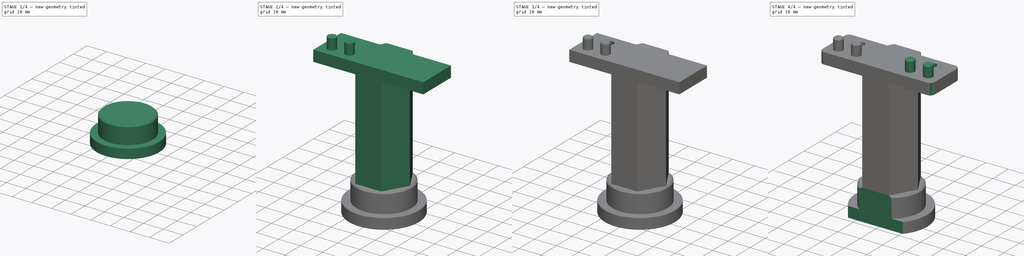
[diagram: build sequence overview — one tinted view per stage of 4, left to right]
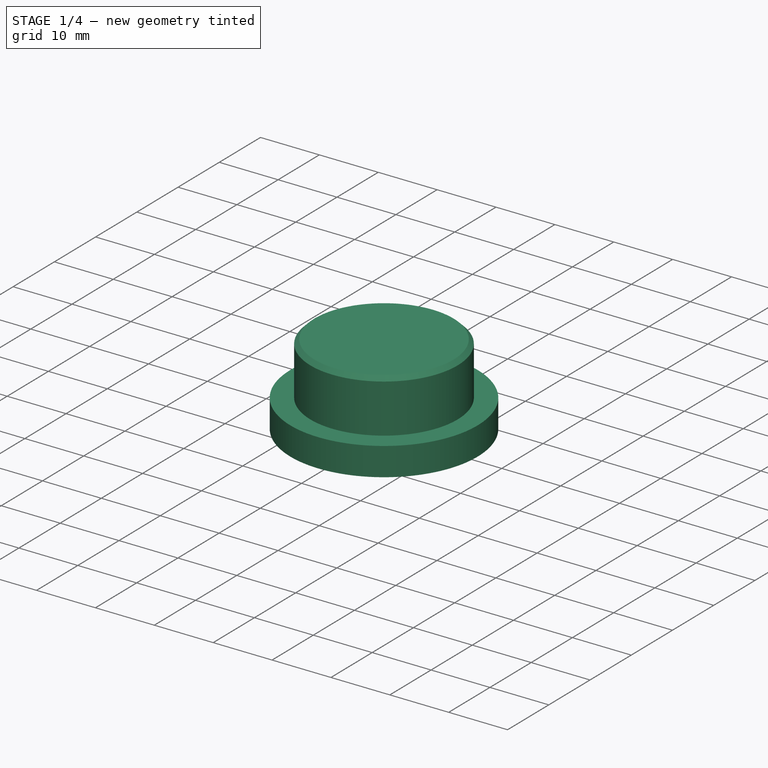
[diagram: stage 1 of 4 — iso view after this stage's code; geometry added in this stage tinted green]
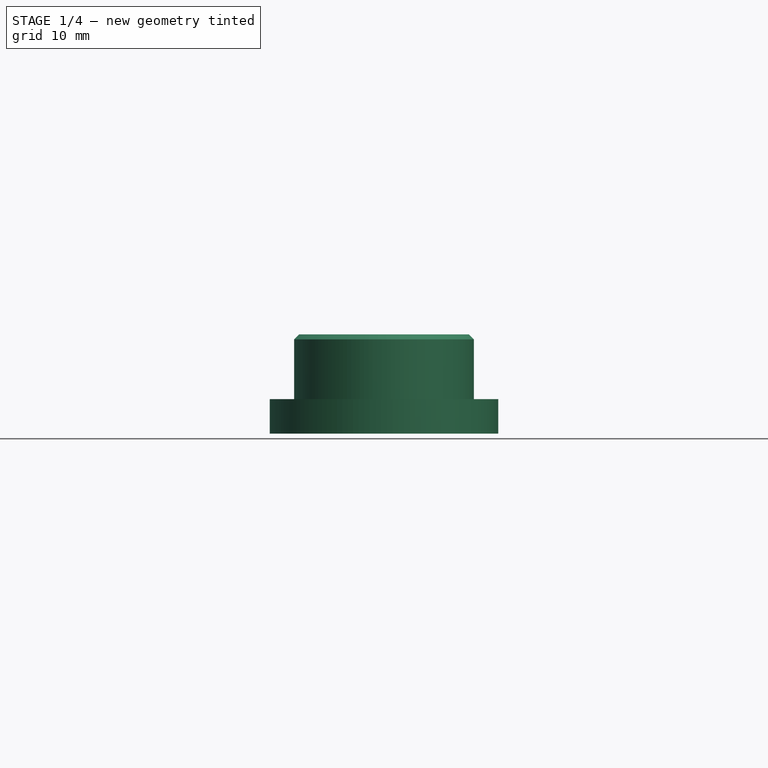
[diagram: stage 1 of 4 — front view after this stage's code; geometry added in this stage tinted green]
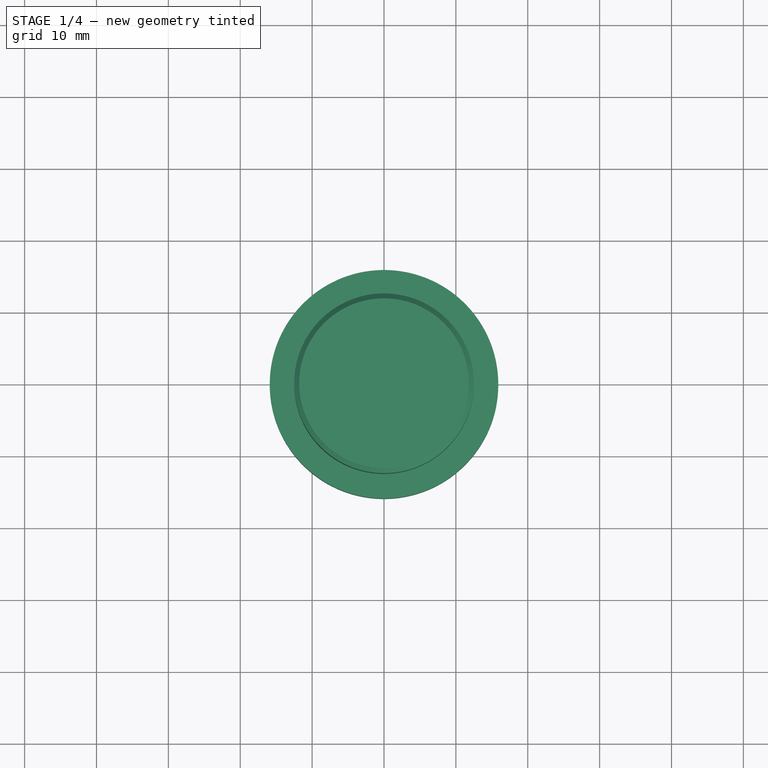
[diagram: stage 1 of 4 — top view after this stage's code; geometry added in this stage tinted green]
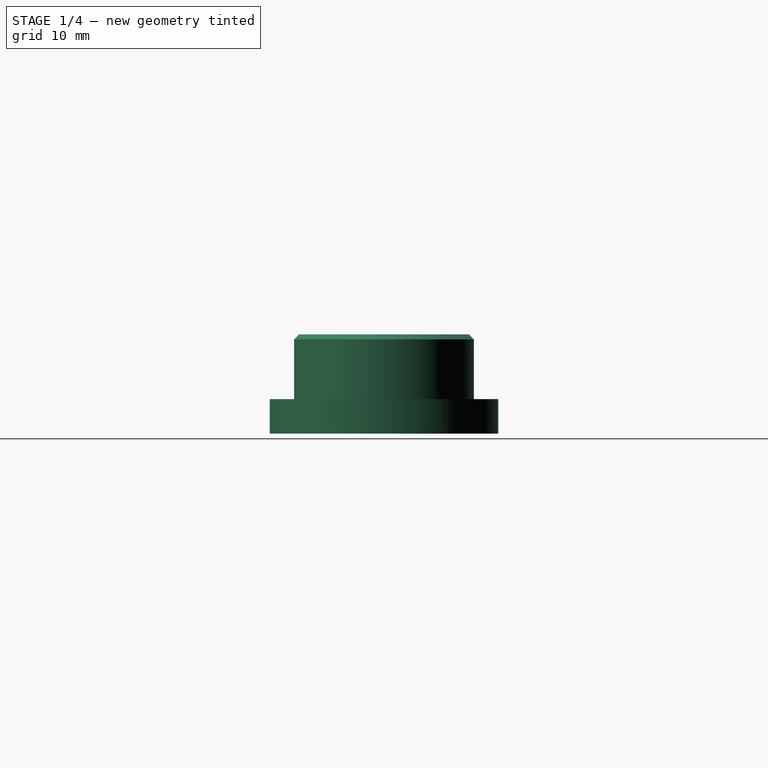
[diagram: stage 1 of 4 — right view after this stage's code; geometry added in this stage tinted green]
FCSTD DOCUMENT  (FreeCAD 0.19R)
Label: dual_cam_stand
License: All rights reserved
LicenseURL: http://en.wikipedia.org/wiki/All_rights_reserved
objects: Sketcher::SketchObject×8, PartDesign::Pad×5, PartDesign::Chamfer×2, PartDesign::Pocket×2, PartDesign::Hole×1, PartDesign::Mirrored×1, PartDesign::Fillet×1, PartDesign::Body×1
note: 32 computed .brp shape members not serialized (recipe doc carries the construction recipe); baked Part::Feature solids carry a one-line shape summary decoded from their .brp

FEATURE [Sketcher::SketchObject] Sketch005  label="disk_sk"
  FullyConstrained = true
  MapMode = 5
  Support = -> [XY_Plane001]
  sketch-geometry (1):
    g0: Circle CenterX=0 CenterY=0 CenterZ=0 NormalX=0 NormalY=0 NormalZ=1 AngleXU=0 Radius=15.9
  constraints (2):
    c: Coincident(g0,g-1)
    c: Diameter(g0) = 31.8
FEATURE [PartDesign::Pad] Pad003  label="disk"
  Direction = (1,1,1)
  Length = 4.8
  Length2 = 100
  Profile = -> Sketch005
  Type = 0
FEATURE [Sketcher::SketchObject] Sketch004  label="rod_sk"
  FullyConstrained = true
  MapMode = 5
  Placement = pos=(0,0,4.8) rot=(0,0,1;0rad)
  Support = -> [Pad003]
  sketch-geometry (1):
    g0: Circle CenterX=0 CenterY=0 CenterZ=0 NormalX=0 NormalY=0 NormalZ=1 AngleXU=0 Radius=12.5
  constraints (2):
    c: Coincident(g0,g-1)
    c: Diameter(g0) = 25
FEATURE [PartDesign::Pad] Pad002  label="rod"
  BaseFeature = -> Pad003
  Direction = (1,1,1)
  Length = 9
  Length2 = 100
  Profile = -> Sketch004
  Type = 0
FEATURE [PartDesign::Chamfer] Chamfer002  label="foot_chamfer"
  Angle = 45
  Base = -> Pad002 [Edge6]
  BaseFeature = -> Pad002
  ChamferType = 0
  FlipDirection = false
  Size = 0.7
  Size2 = 1
  SupportTransform = false
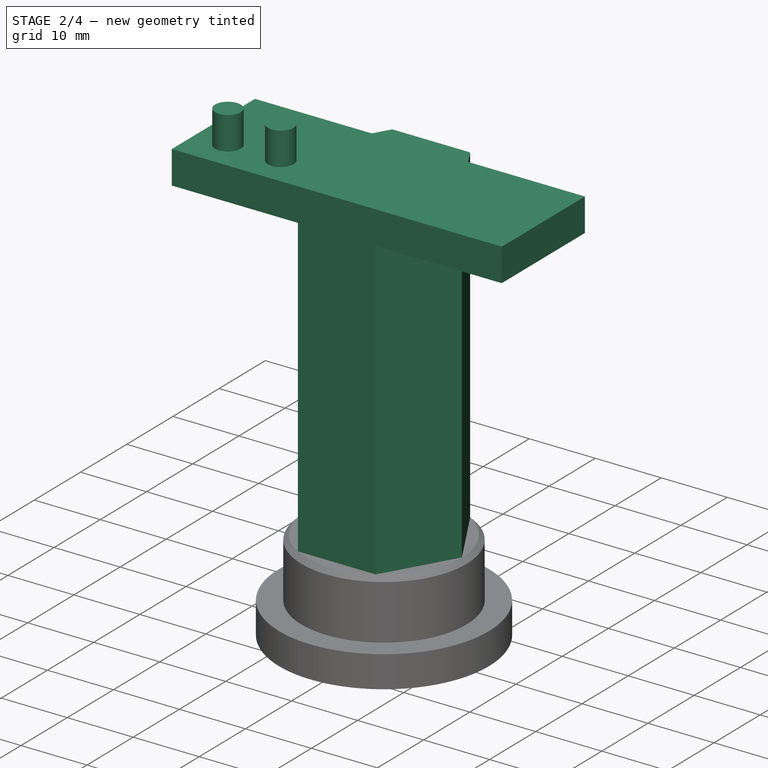
[diagram: stage 2 of 4 — iso view after this stage's code; geometry added in this stage tinted green]
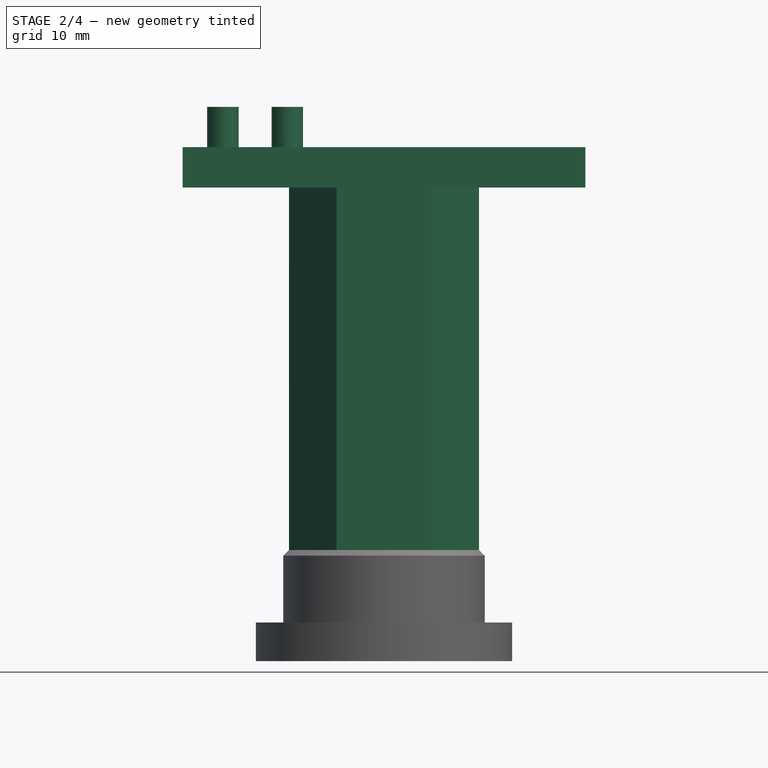
[diagram: stage 2 of 4 — front view after this stage's code; geometry added in this stage tinted green]
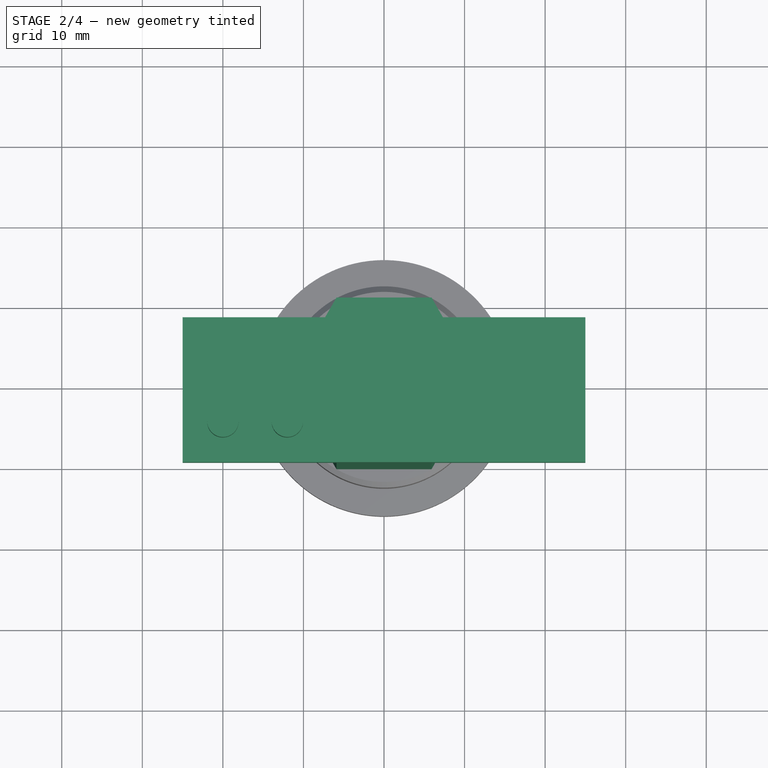
[diagram: stage 2 of 4 — top view after this stage's code; geometry added in this stage tinted green]
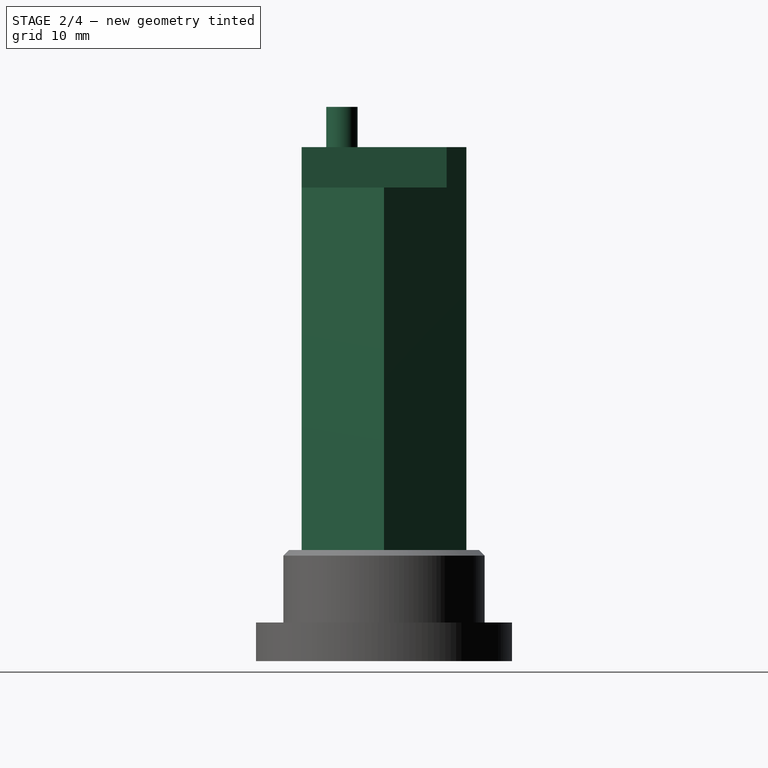
[diagram: stage 2 of 4 — right view after this stage's code; geometry added in this stage tinted green]
FEATURE [Sketcher::SketchObject] Sketch  label="post_sk"
  ExternalGeometry = -> [Chamfer002]
  FullyConstrained = true
  MapMode = 5
  Placement = pos=(0,0,13.8) rot=(0,0,1;0rad)
  Support = -> [Chamfer002]
  sketch-geometry (7):
    g0: LineSegment StartX=11.8 StartY=0 StartZ=0 EndX=5.9 EndY=10.2191 EndZ=0
    g1: LineSegment StartX=5.9 StartY=10.2191 StartZ=0 EndX=-5.9 EndY=10.2191 EndZ=0
    g2: LineSegment StartX=-5.9 StartY=10.2191 StartZ=0 EndX=-11.8 EndY=-2.6041e-12 EndZ=0
    g3: LineSegment StartX=-11.8 StartY=-2.6041e-12 StartZ=0 EndX=-5.9 EndY=-10.2191 EndZ=0
    g4: LineSegment StartX=-5.9 StartY=-10.2191 StartZ=0 EndX=5.9 EndY=-10.2191 EndZ=0
    g5: LineSegment StartX=5.9 StartY=-10.2191 StartZ=0 EndX=11.8 EndY=0 EndZ=0
    g6: Circle CenterX=0 CenterY=0 CenterZ=0 NormalX=0 NormalY=0 NormalZ=1 AngleXU=0 Radius=11.8
  constraints (16):
    c: Coincident(g0,g1)
    c: Coincident(g1,g2)
    c: Coincident(g2,g3)
    c: Coincident(g3,g4)
    c: Coincident(g4,g5)
    c: Coincident(g5,g0)
    c: Equal(g0, g1-g5) x5
    c: PointOnObject(g0,g6)
    c: PointOnObject(g1,g6)
    c: PointOnObject(g2,g6)
    c: PointOnObject(g3,g6)
    c: PointOnObject(g4,g6)
    c: PointOnObject(g5,g6)
    c: Coincident(g6,g-1)
    c: PointOnObject(g5,g-3)
    c: PointOnObject(g0,g-1)
FEATURE [PartDesign::Pad] Pad  label="post"
  BaseFeature = -> Chamfer002
  Direction = (1,1,1)
  Length = 50
  Length2 = 100
  Profile = -> Sketch
  Type = 0
FEATURE [Sketcher::SketchObject] Sketch006  label="holder_plate_sk"
  ExternalGeometry = -> [Pad]
  FullyConstrained = true
  MapMode = 5
  Placement = pos=(0,0,63.8) rot=(0,0,1;0rad)
  Support = -> [Pad]
  sketch-geometry (4):
    g0: LineSegment StartX=25 StartY=7.7809 StartZ=0 EndX=-25 EndY=7.7809 EndZ=0
    g1: LineSegment StartX=-25 StartY=7.7809 StartZ=0 EndX=-25 EndY=-10.2191 EndZ=0
    g2: LineSegment StartX=-25 StartY=-10.2191 StartZ=0 EndX=25 EndY=-10.2191 EndZ=0
    g3: LineSegment StartX=25 StartY=-10.2191 StartZ=0 EndX=25 EndY=7.7809 EndZ=0
  constraints (11):
    c: Coincident(g0,g1)
    c: Coincident(g1,g2)
    c: Coincident(g2,g3)
    c: Coincident(g3,g0)
    c: Horizontal(g0)
    c: Vertical(g1)
    c: Vertical(g3)
    c: Distance(g3) = 18
    c: Distance(g0) = 50
    c: Symmetric(g1,g2,g-2)
    c: PointOnObject(g-3,g2)
FEATURE [PartDesign::Pad] Pad004  label="holder_plate"
  BaseFeature = -> Pad
  Direction = (1,1,1)
  Length = 5
  Length2 = 100
  Profile = -> Sketch006
  Reversed = true
  Type = 0
FEATURE [Sketcher::SketchObject] Sketch007  label="dual_dowel_pin_sk"
  ExternalGeometry = -> [Pad004]
  FullyConstrained = true
  MapMode = 5
  Placement = pos=(0,0,63.8) rot=(0,0,1;0rad)
  Support = -> [Pad004]
  sketch-geometry (2):
    g0: Circle CenterX=-20 CenterY=-5.2191 CenterZ=0 NormalX=0 NormalY=0 NormalZ=1 AngleXU=0 Radius=1.95
    g1: Circle CenterX=-12 CenterY=-5.2191 CenterZ=0 NormalX=0 NormalY=0 NormalZ=1 AngleXU=0 Radius=1.95
  constraints (6):
    c: Horizontal(g0,g1)
    c: DistanceX(g0,g1) = 8
    c: Equal(g0,g1)
    c: Radius(g0) = 1.95
    c: Distance(g0,g-3) = 5
    c: Distance(g0,g-4) = 5
FEATURE [PartDesign::Pad] Pad005  label="dual_dowel_pin"
  BaseFeature = -> Pad004
  Direction = (1,1,1)
  Length = 5
  Length2 = 100
  Profile = -> Sketch007
  Type = 0
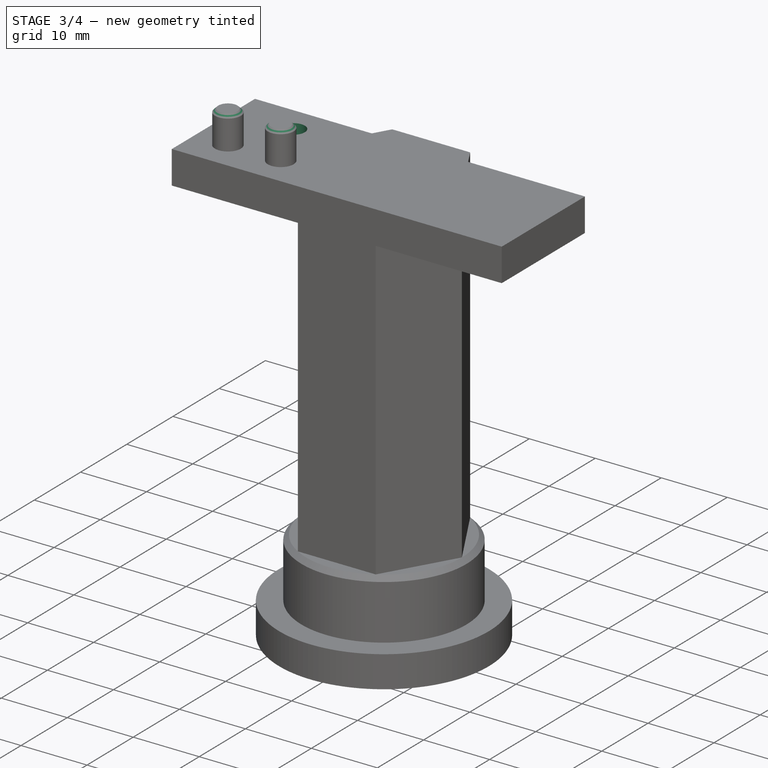
[diagram: stage 3 of 4 — iso view after this stage's code; geometry added in this stage tinted green]
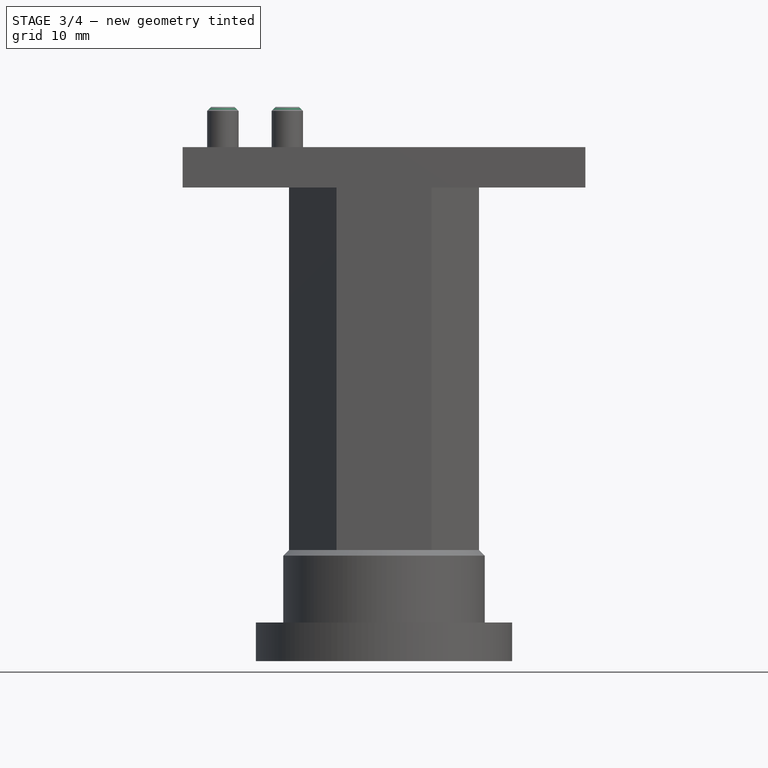
[diagram: stage 3 of 4 — front view after this stage's code; geometry added in this stage tinted green]
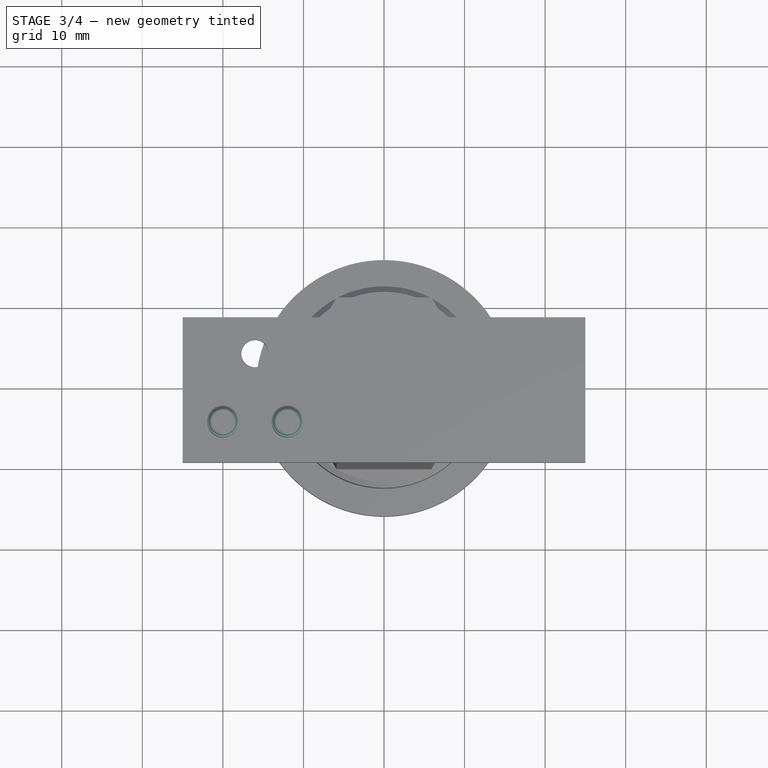
[diagram: stage 3 of 4 — top view after this stage's code; geometry added in this stage tinted green]
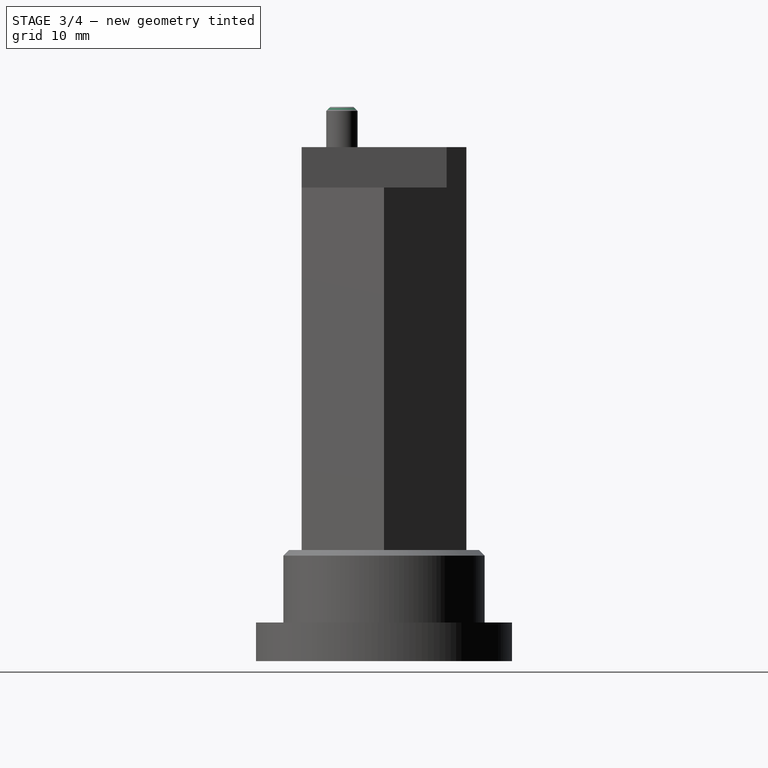
[diagram: stage 3 of 4 — right view after this stage's code; geometry added in this stage tinted green]
FEATURE [Sketcher::SketchObject] Sketch008  label="M3_hole_sk"
  ExternalGeometry = -> [Pad005]
  FullyConstrained = true
  MapMode = 5
  Placement = pos=(0,0,63.8) rot=(0,0,1;0rad)
  Support = -> [Pad005]
  sketch-geometry (2):
    g0: Circle CenterX=-16 CenterY=3.2809 CenterZ=0 NormalX=0 NormalY=0 NormalZ=1 AngleXU=0 Radius=1
    g1: GeomPoint X=-16 Y=-5.2191 Z=0
  constraints (4):
    c: Radius(g0) = 1
    c: Symmetric(g-4,g-3,g1)
    c: Vertical(g0,g1)
    c: DistanceY(g1,g0) = 8.5
FEATURE [PartDesign::Hole] Hole  label="M3_hole"
  BaseFeature = -> Pad005
  Depth = 10
  DepthType = 0
  Diameter = 3.4
  DrillForDepth = false
  DrillPoint = 1
  DrillPointAngle = 118
  HoleCutCountersinkAngle = 90
  HoleCutCustomValues = false
  HoleCutDepth = 0
  HoleCutDiameter = 6.1
  HoleCutType = 0
  ModelActualThread = false
  Profile = -> Sketch008
  Tapered = false
  TaperedAngle = 90
  ThreadAngle = 0
  ThreadClass = 0
  ThreadCutOffInner = 0
  ThreadCutOffOuter = 0
  ThreadDirection = 0
  ThreadFit = 0
  ThreadPitch = 0
  ThreadSize = 9
  ThreadType = 1
  Threaded = false
FEATURE [Sketcher::SketchObject] Sketch009  label="M3_hex_sk"
  ExternalGeometry = -> [Hole]
  FullyConstrained = true
  MapMode = 5
  Placement = pos=(0,0,58.8) rot=(1,0,0;3.14159rad)
  Support = -> [Hole]
  sketch-geometry (7):
    g0: LineSegment StartX=-12.6514 StartY=-3.2809 StartZ=0 EndX=-14.3257 EndY=-0.3809 EndZ=0
    g1: LineSegment StartX=-14.3257 StartY=-0.3809 StartZ=0 EndX=-17.6743 EndY=-0.3809 EndZ=0
    g2: LineSegment StartX=-17.6743 StartY=-0.3809 StartZ=0 EndX=-19.3486 EndY=-3.2809 EndZ=0
    g3: LineSegment StartX=-19.3486 StartY=-3.2809 StartZ=0 EndX=-17.6743 EndY=-6.1809 EndZ=0
    g4: LineSegment StartX=-17.6743 StartY=-6.1809 StartZ=0 EndX=-14.3257 EndY=-6.1809 EndZ=0
    g5: LineSegment StartX=-14.3257 StartY=-6.1809 StartZ=0 EndX=-12.6514 EndY=-3.2809 EndZ=0
    g6: Circle CenterX=-16 CenterY=-3.2809 CenterZ=0 NormalX=0 NormalY=0 NormalZ=1 AngleXU=0 Radius=3.34863
  constraints (16):
    c: Coincident(g0,g1)
    c: Coincident(g1,g2)
    c: Coincident(g2,g3)
    c: Coincident(g3,g4)
    c: Coincident(g4,g5)
    c: Coincident(g5,g0)
    c: Equal(g0, g1-g5) x5
    c: PointOnObject(g0,g6)
    c: PointOnObject(g1,g6)
    c: PointOnObject(g2,g6)
    c: PointOnObject(g3,g6)
    c: PointOnObject(g4,g6)
    c: PointOnObject(g5,g6)
    c: Horizontal(g0,g6)
    c: Distance(g1,g3) = 5.8
    c: Coincident(g6,g-3)
FEATURE [PartDesign::Pocket] Pocket  label="M3_hex"
  BaseFeature = -> Hole
  Length = 2.15
  Length2 = 100
  Profile = -> Sketch009
  Type = 0
FEATURE [PartDesign::Chamfer] Chamfer  label="dowel_chamfer"
  Angle = 45
  Base = -> Pocket [Edge83,Edge85]
  BaseFeature = -> Pocket
  ChamferType = 0
  FlipDirection = false
  Size = 0.5
  Size2 = 1
  SupportTransform = false
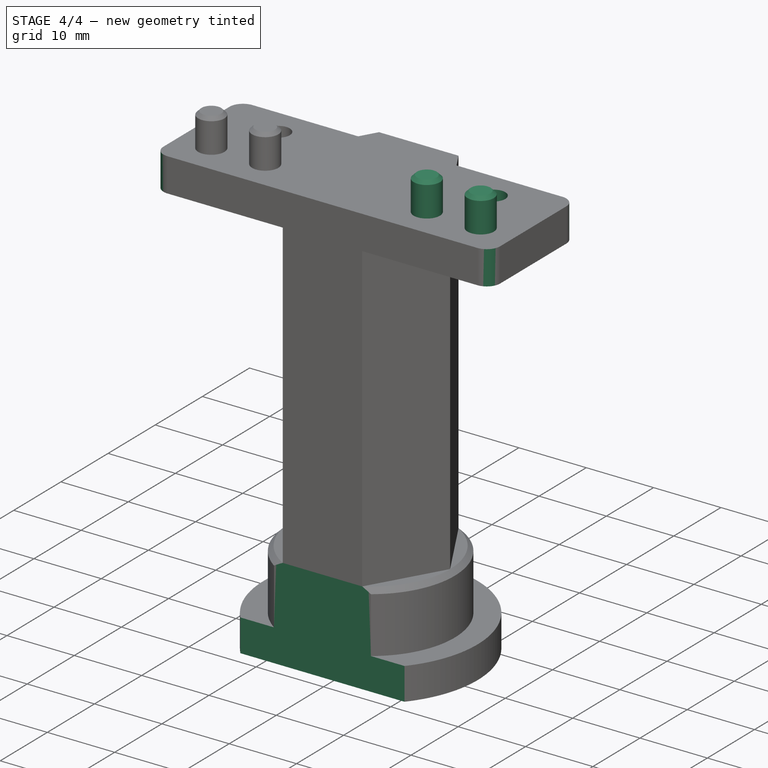
[diagram: stage 4 of 4 — iso view after this stage's code; geometry added in this stage tinted green]
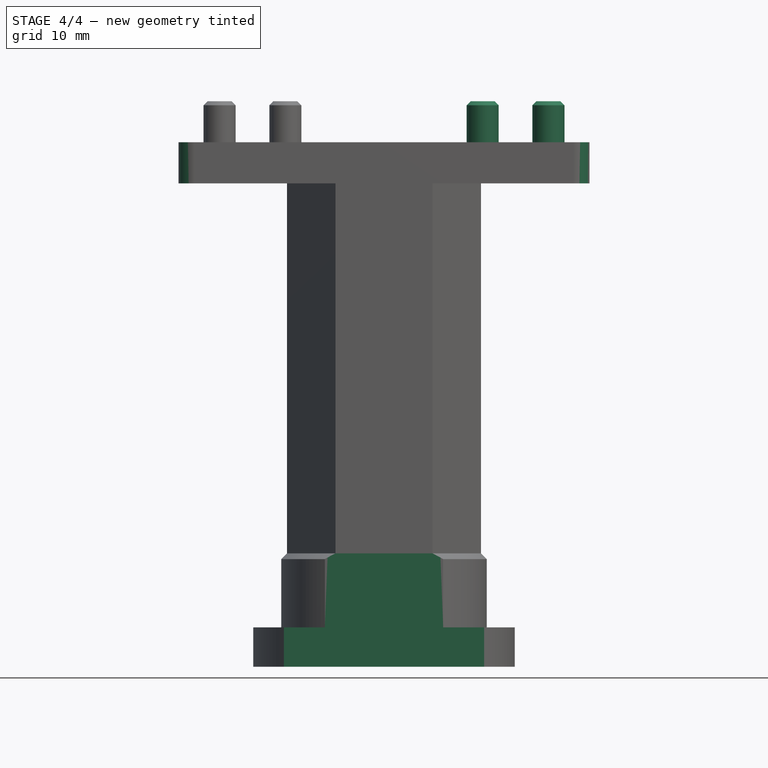
[diagram: stage 4 of 4 — front view after this stage's code; geometry added in this stage tinted green]
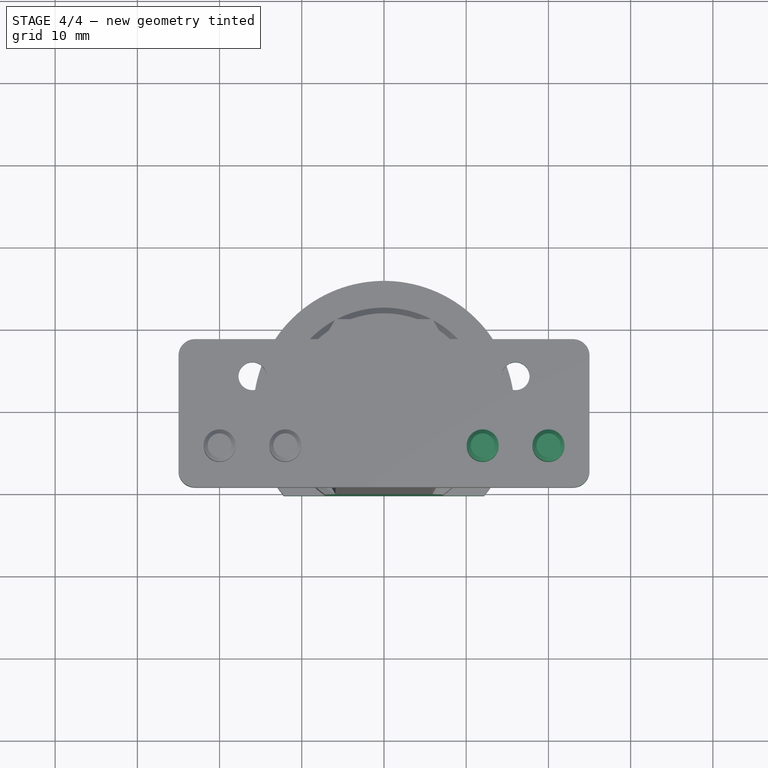
[diagram: stage 4 of 4 — top view after this stage's code; geometry added in this stage tinted green]
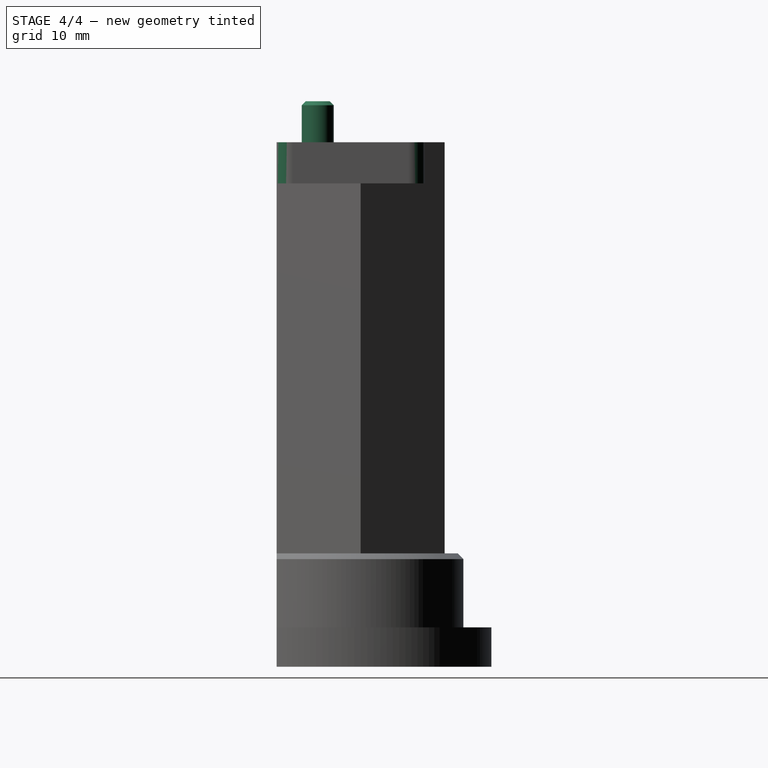
[diagram: stage 4 of 4 — right view after this stage's code; geometry added in this stage tinted green]
FEATURE [PartDesign::Mirrored] Mirrored
  BaseFeature = -> Chamfer
  MirrorPlane = -> YZ_Plane001
  Originals = -> [Pad005,Hole,Pocket,Chamfer]
FEATURE [PartDesign::Fillet] Fillet  label="tip_fillet"
  Base = -> Mirrored [Edge20,Edge17,Edge59,Edge58]
  BaseFeature = -> Mirrored
  Radius = 2
  SupportTransform = false
FEATURE [Sketcher::SketchObject] Sketch010  label="printer_trim_sk"
  FullyConstrained = true
  MapMode = 5
  Placement = pos=(0,-10.2191,0) rot=(1,0,0;1.5708rad)
  Support = -> [Fillet]
  sketch-geometry (4):
    g0: LineSegment StartX=-30 StartY=0 StartZ=0 EndX=30 EndY=0 EndZ=0
    g1: LineSegment StartX=30 StartY=0 StartZ=0 EndX=30 EndY=80 EndZ=0
    g2: LineSegment StartX=30 StartY=80 StartZ=0 EndX=-30 EndY=80 EndZ=0
    g3: LineSegment StartX=-30 StartY=80 StartZ=0 EndX=-30 EndY=0 EndZ=0
  constraints (11):
    c: Coincident(g0,g1)
    c: Coincident(g1,g2)
    c: Coincident(g2,g3)
    c: Coincident(g3,g0)
    c: Horizontal(g0)
    c: Vertical(g1)
    c: Vertical(g3)
    c: PointOnObject(g0,g-1)
    c: Symmetric(g1,g2,g-2)
    c: Distance(g2) = 60
    c: Distance(g3) = 80
FEATURE [PartDesign::Pocket] Pocket001  label="printer_trim"
  BaseFeature = -> Fillet
  Length = 5
  Length2 = 100
  Profile = -> Sketch010
  Reversed = true
  Type = 1
FEATURE [PartDesign::Body] Body001  label="body"
  Group = -> [Sketch005,Pad003,Sketch004,Pad002,Chamfer002,Sketch,Pad,Sketch006,Pad004,Sketch007,Pad005,Sketch008,Hole,Sketch009,Pocket,Chamfer,Mirrored,Fillet,Sketch010,Pocket001]
  Origin = -> Origin001
  Placement = pos=(0,-60,0) rot=(-1,0,0;1.5708rad)
  Tip = -> Pocket001
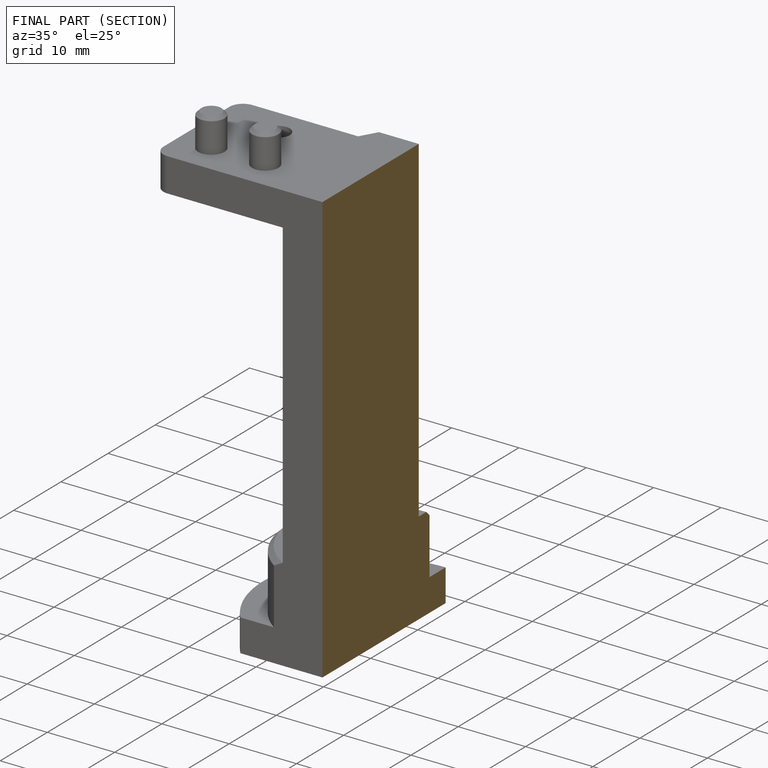
[diagram: finished part — half-section view (interior)]
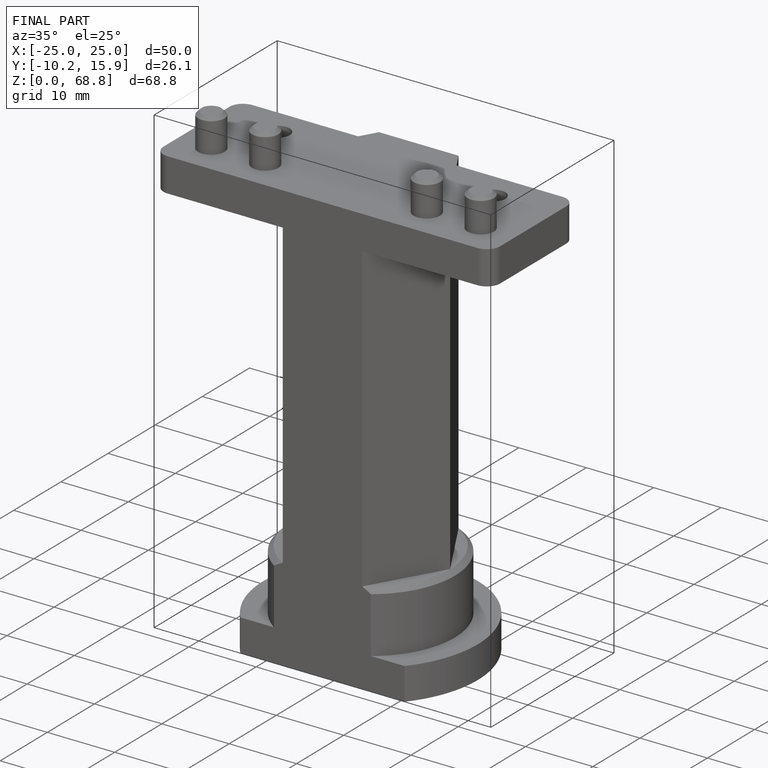
[diagram: finished part — iso view with bounding-box wireframe]
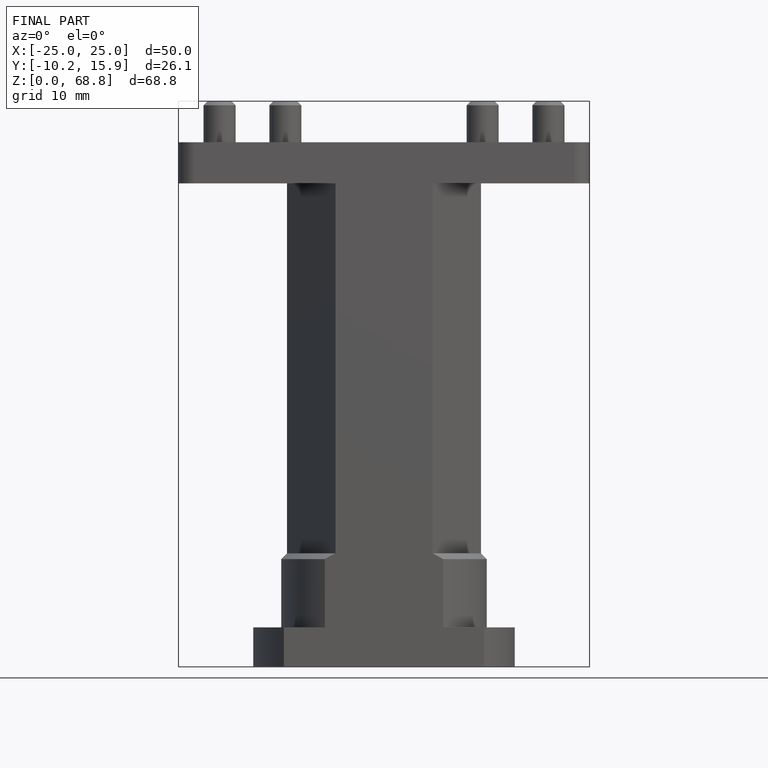
[diagram: finished part — front view with bounding-box wireframe]
